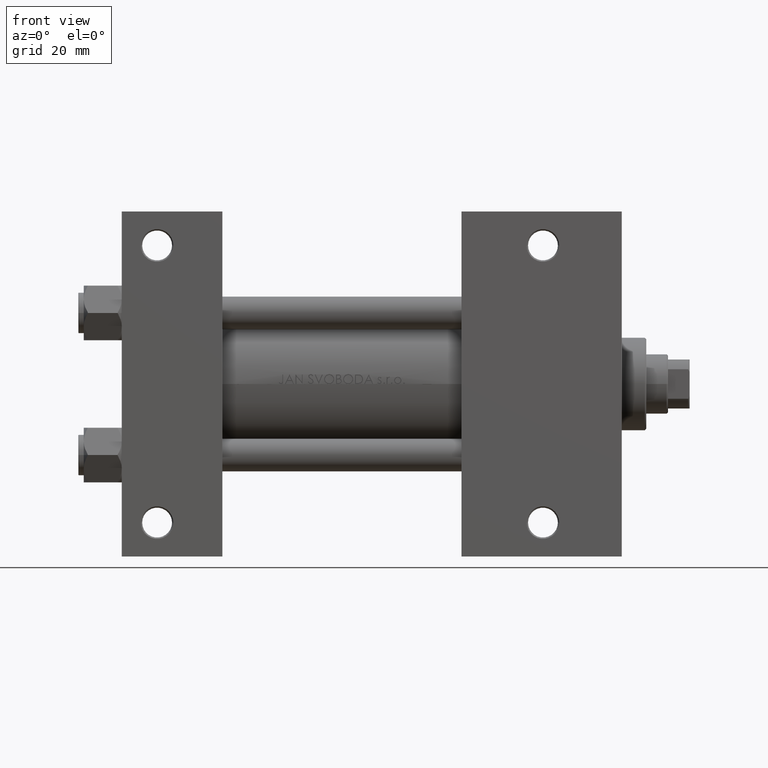
[diagram: clean part render]
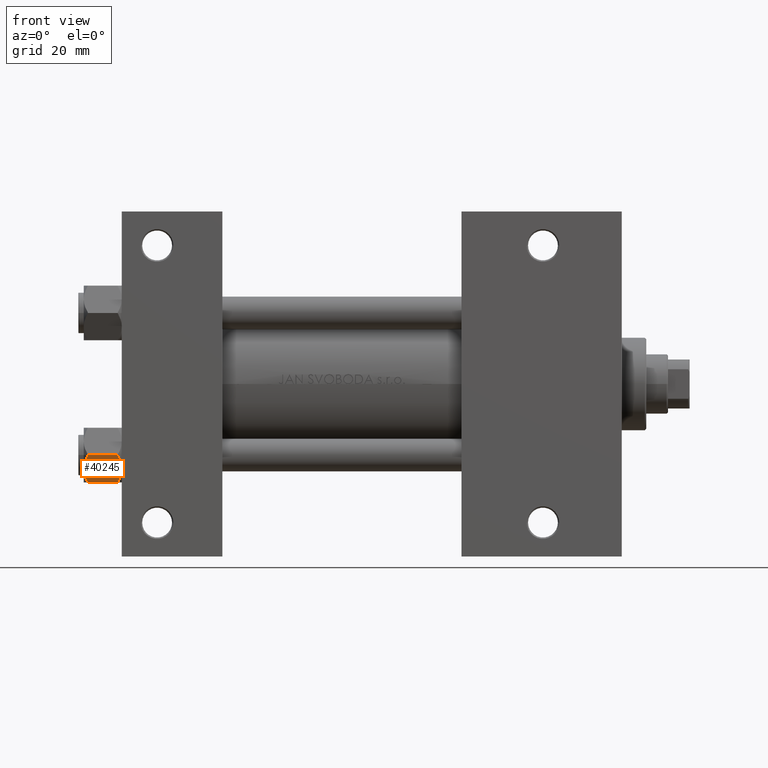
[diagram: same view with one face highlighted and labeled with its STEP entity id]
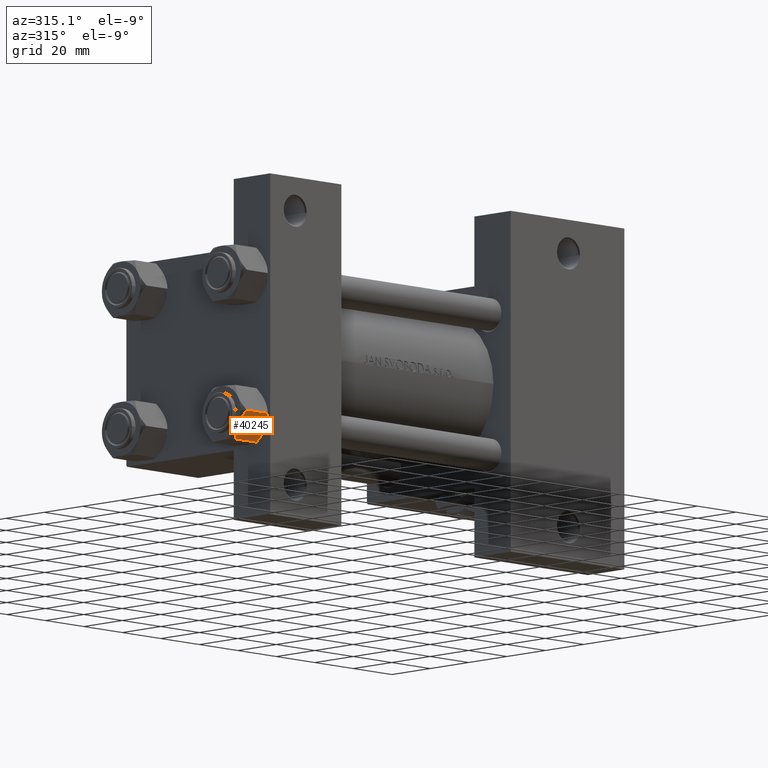
[diagram: same view with one face highlighted and labeled with its STEP entity id]
A machine part, front view. The second image highlights one B-rep face of the part: STEP entity #40245.
A second angle (auxiliary view) of the same face is appended — the face is thin or edge-on in the first view.
In plain terms, the highlighted planar face has unit normal (0, 0.866, 0.5).
Its self-contained STEP definition (entity closure, byte-faithful):
#1509 = ORIENTED_EDGE ( 'NONE', *, *, #33694, .F. ) ;
#2046 = ORIENTED_EDGE ( 'NONE', *, *, #42758, .F. ) ;
#2737 = CARTESIAN_POINT ( 'NONE',  ( 6.265545725125283738, -9.274186850887380373, -1.101239082899531319 ) ) ;
#3722 = CARTESIAN_POINT ( 'NONE',  ( 8.460569896449618099, -5.472293462311865753, 1.694065894508600678E-15 ) ) ;
#3968 = ORIENTED_EDGE ( 'NONE', *, *, #7439, .T. ) ;
#4083 = VERTEX_POINT ( 'NONE', #47176 ) ;
#5548 = CARTESIAN_POINT ( 'NONE',  ( 9.974696630283194310, -2.849749030213795997, -13.69973261901326289 ) ) ;
#6006 = EDGE_CURVE ( 'NONE', #12074, #46728, #6474, .T. ) ;
#6474 = LINE ( 'NONE', #37330, #14336 ) ;
#6966 = CARTESIAN_POINT ( 'NONE',  ( 8.715000000000001634, -5.031607595987590997, 0.000000000000000000 ) ) ;
#7439 = EDGE_CURVE ( 'NONE', #29368, #35881, #9115, .T. ) ;
#8076 = VERTEX_POINT ( 'NONE', #44994 ) ;
#8231 = CARTESIAN_POINT ( 'NONE',  ( 5.810000000000000497, -10.06321519197517667, -12.44321519197518633 ) ) ;
#8781 = CARTESIAN_POINT ( 'NONE',  ( 11.62000000000000099, -1.795242522838921761E-15, -12.44321519197518455 ) ) ;
#9039 = CARTESIAN_POINT ( 'NONE',  ( 8.969430103550385169, -4.590921729663315354, -14.00000000000000533 ) ) ;
#9115 = LINE ( 'NONE', #43725, #47733 ) ;
#9161 = FACE_OUTER_BOUND ( 'NONE', #34906, .T. ) ;
#9610 = DIRECTION ( 'NONE',  ( -0.000000000000000000, -0.000000000000000000, 1.000000000000000000 ) ) ;
#10685 = CARTESIAN_POINT ( 'NONE',  ( 8.715000000000001634, -5.031607595987590997, 0.000000000000000000 ) ) ;
#10965 = CARTESIAN_POINT ( 'NONE',  ( 6.731401448974986934, -8.467301068182914392, -0.7141438259524658383 ) ) ;
#11846 = ORIENTED_EDGE ( 'NONE', *, *, #15553, .F. ) ;
#12074 = VERTEX_POINT ( 'NONE', #31990 ) ;
#13023 = CARTESIAN_POINT ( 'NONE',  ( 9.729165168613654657, -3.275021996682085490, -13.80960203119266083 ) ) ;
#13151 = DIRECTION ( 'NONE',  ( -0.8660254037844385966, 0.5000000000000002220, 0.000000000000000000 ) ) ;
#14336 = VECTOR ( 'NONE', #18440, 1000.000000000000000 ) ;
#14581 = ORIENTED_EDGE ( 'NONE', *, *, #32345, .F. ) ;
#15553 = EDGE_CURVE ( 'NONE', #8076, #12074, #17778, .T. ) ;
#15971 = CARTESIAN_POINT ( 'NONE',  ( 6.733375043383497349, -8.463882702393844326, -13.28854452935655139 ) ) ;
#17683 = CARTESIAN_POINT ( 'NONE',  ( 9.220295946303432189, -4.156409344131454020, 1.753358200816401307E-15 ) ) ;
#17778 = B_SPLINE_CURVE_WITH_KNOTS ( 'NONE', 3,
 ( #30889, #38110, #49078, #15971, #34864, #8231 ),
 .UNSPECIFIED., .F., .F.,
 ( 4, 2, 4 ),
 ( 0.006022845781655588975, 0.009013049135303635023, 0.01200325248895167674 ),
 .UNSPECIFIED. ) ;
#18440 = DIRECTION ( 'NONE',  ( -0.000000000000000000, -0.000000000000000000, 1.000000000000000000 ) ) ;
#20263 = CARTESIAN_POINT ( 'NONE',  ( 9.227666995912104042, -4.143642311704127223, -13.96005881939309212 ) ) ;
#20509 = CARTESIAN_POINT ( 'NONE',  ( 8.715000000000001634, -5.031607595987590997, -14.00000000000000000 ) ) ;
#22038 = AXIS2_PLACEMENT_3D ( 'NONE', #38802, #13151, #24366 ) ;
#22426 = CARTESIAN_POINT ( 'NONE',  ( 5.810000000000000497, -10.06321519197517667, -1.556784808024813671 ) ) ;
#24122 = ORIENTED_EDGE ( 'NONE', *, *, #6006, .F. ) ;
#24366 = DIRECTION ( 'NONE',  ( -0.5000000000000001110, -0.8660254037844384856, 0.000000000000000000 ) ) ;
#26129 = CARTESIAN_POINT ( 'NONE',  ( 11.16498164529022574, -0.7881149087337310233, -1.101766453314954264 ) ) ;
#26149 = CARTESIAN_POINT ( 'NONE',  ( 5.810000000000000497, -10.06321519197517667, -1.556784808024813671 ) ) ;
#26158 = CARTESIAN_POINT ( 'NONE',  ( 8.202333004087901003, -5.919572880271055659, -0.03994118060690762112 ) ) ;
#29022 = CARTESIAN_POINT ( 'NONE',  ( 11.62000000000000099, -1.607967606633101042E-15, -1.556784808024815669 ) ) ;
#29368 = VERTEX_POINT ( 'NONE', #8781 ) ;
#29610 = CARTESIAN_POINT ( 'NONE',  ( 9.716999946243698005, -3.296092779912227932, -0.1545239700039841013 ) ) ;
#30889 = CARTESIAN_POINT ( 'NONE',  ( 8.715000000000001634, -5.031607595987590997, -14.00000000000000000 ) ) ;
#31990 = CARTESIAN_POINT ( 'NONE',  ( 5.810000000000000497, -10.06321519197517667, -12.44321519197518633 ) ) ;
#32345 = EDGE_CURVE ( 'NONE', #29368, #8076, #39834, .T. ) ;
#33332 = CARTESIAN_POINT ( 'NONE',  ( 11.62000000000000099, -1.607967606633101042E-15, -1.556784808024815669 ) ) ;
#33694 = EDGE_CURVE ( 'NONE', #4083, #35881, #42784, .T. ) ;
#34864 = CARTESIAN_POINT ( 'NONE',  ( 6.265018354709775750, -9.275100283241444643, -12.89823354668504507 ) ) ;
#34906 = EDGE_LOOP ( 'NONE', ( #14581, #3968, #1509, #2046, #24122, #11846 ) ) ;
#35175 = CARTESIAN_POINT ( 'NONE',  ( 11.16445427487471775, -0.7890283410877989567, -12.89876091710046424 ) ) ;
#35881 = VERTEX_POINT ( 'NONE', #29022 ) ;
#37330 = CARTESIAN_POINT ( 'NONE',  ( 5.810000000000000497, -10.06321519197517667, -14.00000000000000000 ) ) ;
#37557 = CARTESIAN_POINT ( 'NONE',  ( 10.69662495661650503, -1.599332489581334560, -0.7114554706434500497 ) ) ;
#38110 = CARTESIAN_POINT ( 'NONE',  ( 8.209704053696569304, -5.906805847843729751, -14.00000000000000711 ) ) ;
#38802 = CARTESIAN_POINT ( 'NONE',  ( 11.62000000000000099, -1.813166800014576593E-15, -14.00000000000000000 ) ) ;
#39328 = B_SPLINE_CURVE_WITH_KNOTS ( 'NONE', 3,
 ( #22426, #2737, #10965, #44811, #44565, #26158, #3722, #6966 ),
 .UNSPECIFIED., .F., .F.,
 ( 4, 2, 2, 4 ),
 ( 2.544312114902182352E-07, 0.003011550106433538189, 0.004517197944044561847, 0.006022845781655586372 ),
 .UNSPECIFIED. ) ;
#39539 = PLANE ( 'NONE',  #22038 ) ;
#39834 = B_SPLINE_CURVE_WITH_KNOTS ( 'NONE', 3,
 ( #46633, #35175, #43639, #5548, #13023, #20263, #9039, #20509 ),
 .UNSPECIFIED., .F., .F.,
 ( 4, 2, 2, 4 ),
 ( 2.544312114905217906E-07, 0.003011550106433539490, 0.004517197944044564449, 0.006022845781655588975 ),
 .UNSPECIFIED. ) ;
#40245 = ADVANCED_FACE ( 'NONE', ( #9161 ), #39539, .F. ) ;
#42758 = EDGE_CURVE ( 'NONE', #46728, #4083, #39328, .T. ) ;
#42784 = B_SPLINE_CURVE_WITH_KNOTS ( 'NONE', 3,
 ( #10685, #17683, #29610, #37557, #26129, #33332 ),
 .UNSPECIFIED., .F., .F.,
 ( 4, 2, 4 ),
 ( 0.006022845781655586372, 0.009013049135303633289, 0.01200325248895168020 ),
 .UNSPECIFIED. ) ;
#43639 = CARTESIAN_POINT ( 'NONE',  ( 10.69859855102500745, -1.595914123792264050, -13.28585617404753094 ) ) ;
#43725 = CARTESIAN_POINT ( 'NONE',  ( 11.62000000000000099, -1.813166800014576593E-15, -14.00000000000000000 ) ) ;
#44565 = CARTESIAN_POINT ( 'NONE',  ( 7.700834831386345058, -6.788193195293096949, -0.1903979688073415555 ) ) ;
#44811 = CARTESIAN_POINT ( 'NONE',  ( 7.455303369716810735, -7.213466161761385109, -0.3002673809867383303 ) ) ;
#44994 = CARTESIAN_POINT ( 'NONE',  ( 8.715000000000001634, -5.031607595987590997, -14.00000000000000000 ) ) ;
#46633 = CARTESIAN_POINT ( 'NONE',  ( 11.62000000000000099, -1.795242522838921761E-15, -12.44321519197518455 ) ) ;
#46728 = VERTEX_POINT ( 'NONE', #26149 ) ;
#47176 = CARTESIAN_POINT ( 'NONE',  ( 8.715000000000001634, -5.031607595987590997, 0.000000000000000000 ) ) ;
#47733 = VECTOR ( 'NONE', #9610, 1000.000000000000000 ) ;
#49078 = CARTESIAN_POINT ( 'NONE',  ( 7.713000053756304375, -6.767122412062953174, -13.84547602999601601 ) ) ;